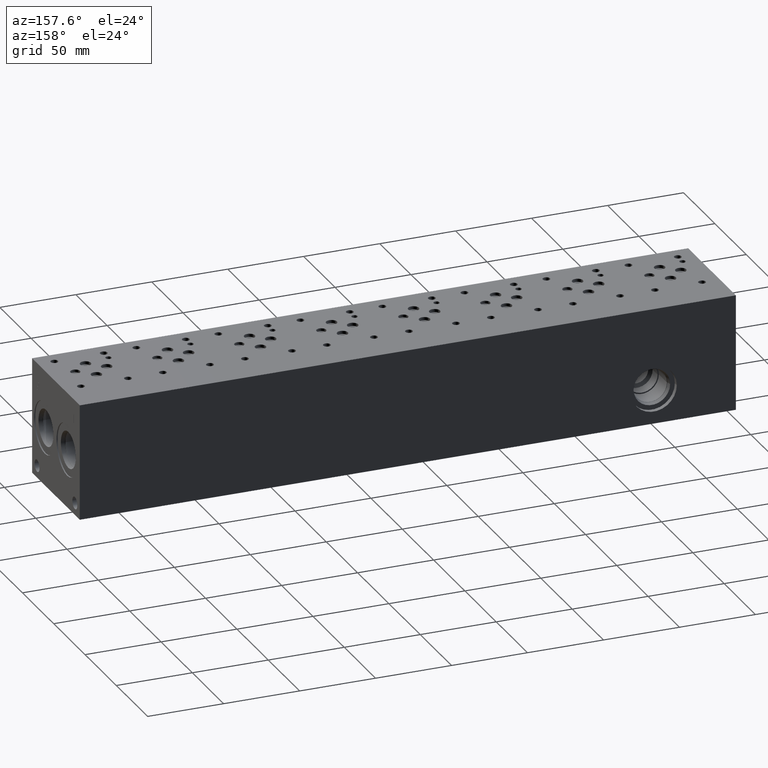
[diagram: clean part render]
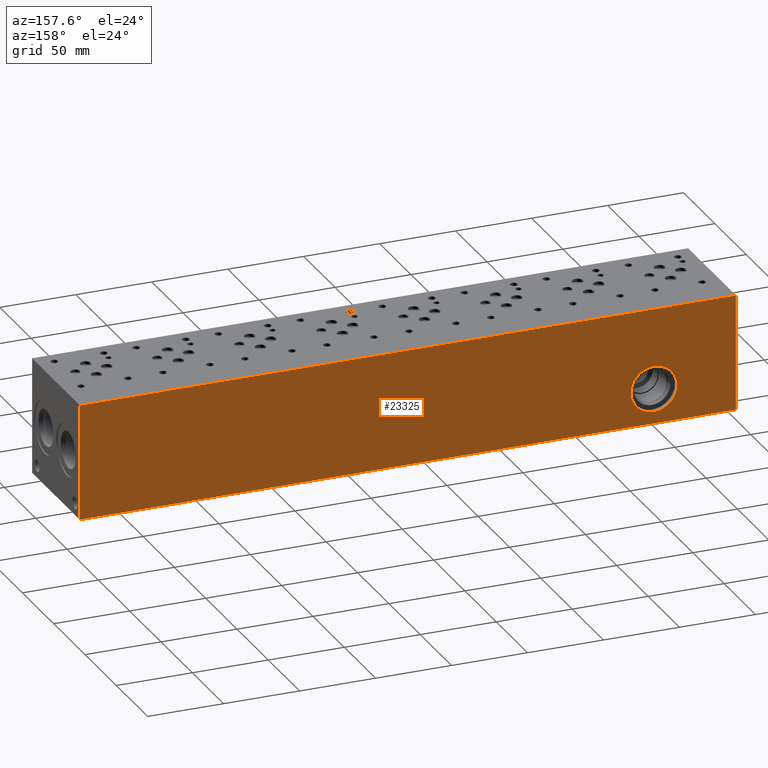
[diagram: same view with one face highlighted and labeled with its STEP entity id]
A machine part, auxiliary view. The second image highlights one B-rep face of the part: STEP entity #23325.
In plain terms, the highlighted planar face has unit normal (0, 1, 0).
Its self-contained STEP definition (entity closure, byte-faithful):
#520=CIRCLE('',#23986,15.08);
#521=CIRCLE('',#23987,15.08);
#1426=FACE_BOUND('',#4691,.T.);
#2059=PLANE('',#25133);
#3283=FACE_OUTER_BOUND('',#4690,.T.);
#4690=EDGE_LOOP('',(#20952,#20953,#20954,#20955));
#4691=EDGE_LOOP('',(#20956,#20957));
#6167=LINE('',#38015,#8041);
#6227=LINE('',#38288,#8101);
#6640=LINE('',#40892,#8514);
#6641=LINE('',#40893,#8515);
#8041=VECTOR('',#27509,10.);
#8101=VECTOR('',#27623,10.);
#8514=VECTOR('',#30592,10.);
#8515=VECTOR('',#30593,10.);
#10376=VERTEX_POINT('',#38012);
#10377=VERTEX_POINT('',#38014);
#10434=VERTEX_POINT('',#38284);
#10435=VERTEX_POINT('',#38286);
#10532=VERTEX_POINT('',#38575);
#10533=VERTEX_POINT('',#38576);
#13308=EDGE_CURVE('',#10376,#10377,#6167,.T.);
#13392=EDGE_CURVE('',#10434,#10435,#6227,.T.);
#13529=EDGE_CURVE('',#10532,#10533,#520,.T.);
#13530=EDGE_CURVE('',#10533,#10532,#521,.T.);
#14604=EDGE_CURVE('',#10376,#10434,#6640,.T.);
#14605=EDGE_CURVE('',#10377,#10435,#6641,.T.);
#20952=ORIENTED_EDGE('',*,*,#14604,.T.);
#20953=ORIENTED_EDGE('',*,*,#13392,.T.);
#20954=ORIENTED_EDGE('',*,*,#14605,.F.);
#20955=ORIENTED_EDGE('',*,*,#13308,.F.);
#20956=ORIENTED_EDGE('',*,*,#13529,.T.);
#20957=ORIENTED_EDGE('',*,*,#13530,.T.);
#23325=ADVANCED_FACE('',(#3283,#1426),#2059,.T.);
#23986=AXIS2_PLACEMENT_3D('',#38577,#27944,#27945);
#23987=AXIS2_PLACEMENT_3D('',#38578,#27946,#27947);
#25133=AXIS2_PLACEMENT_3D('',#40891,#30590,#30591);
#27509=DIRECTION('',(0.,0.,1.));
#27623=DIRECTION('',(0.,0.,1.));
#27944=DIRECTION('center_axis',(0.,-1.,0.));
#27945=DIRECTION('ref_axis',(1.,0.,0.));
#27946=DIRECTION('center_axis',(0.,-1.,0.));
#27947=DIRECTION('ref_axis',(1.,0.,0.));
#30590=DIRECTION('center_axis',(0.,1.,0.));
#30591=DIRECTION('ref_axis',(-1.,0.,0.));
#30592=DIRECTION('',(-1.,0.,0.));
#30593=DIRECTION('',(-1.,0.,0.));
#38012=CARTESIAN_POINT('',(431.8,76.2,0.));
#38014=CARTESIAN_POINT('',(431.8,76.2,76.2));
#38015=CARTESIAN_POINT('',(431.8,76.2,0.));
#38284=CARTESIAN_POINT('',(0.,76.2,0.));
#38286=CARTESIAN_POINT('',(0.,76.2,76.2));
#38288=CARTESIAN_POINT('',(0.,76.2,0.));
#38575=CARTESIAN_POINT('',(69.055,76.2,23.0124));
#38576=CARTESIAN_POINT('',(38.895,76.2,23.0124));
#38577=CARTESIAN_POINT('Origin',(53.975,76.2,23.0124));
#38578=CARTESIAN_POINT('Origin',(53.975,76.2,23.0124));
#40891=CARTESIAN_POINT('Origin',(431.8,76.2,0.));
#40892=CARTESIAN_POINT('',(431.8,76.2,0.));
#40893=CARTESIAN_POINT('',(431.8,76.2,76.2));